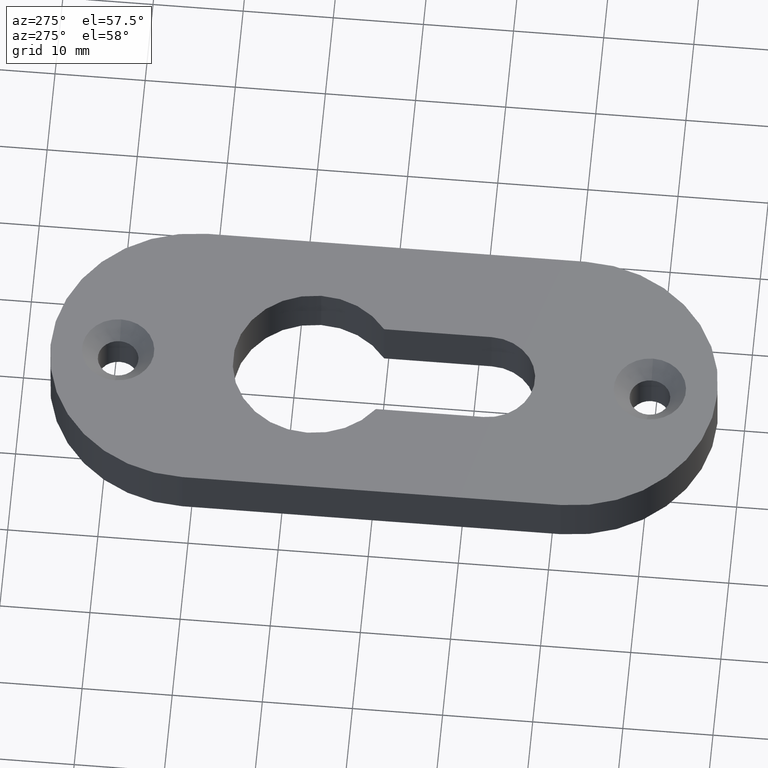
[diagram: clean part render]
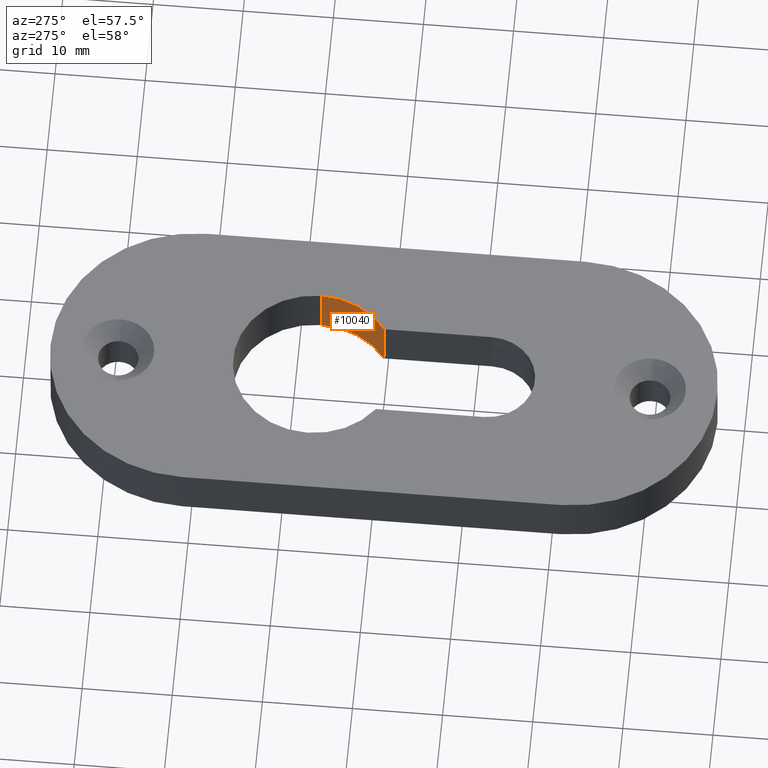
[diagram: same view with one face highlighted and labeled with its STEP entity id]
A machine part, auxiliary view. The second image highlights one B-rep face of the part: STEP entity #10040.
In plain terms, the highlighted cylindrical surface (partial cylindrical patch) has radius 9 mm, axis along (-0, -0, -1).
Its self-contained STEP definition (entity closure, byte-faithful):
#611 = EDGE_CURVE ( 'NONE', #2372, #882, #10341, .T. ) ;
#692 = VERTEX_POINT ( 'NONE', #7104 ) ;
#882 = VERTEX_POINT ( 'NONE', #6963 ) ;
#1062 = CARTESIAN_POINT ( 'NONE',  ( 9.000000000000000000, 7.750000000000002700, 6.000000000000000000 ) ) ;
#1137 = VECTOR ( 'NONE', #4972, 1000.000000000000000 ) ;
#1144 = ORIENTED_EDGE ( 'NONE', *, *, #4396, .T. ) ;
#1996 = CARTESIAN_POINT ( 'NONE',  ( 9.000000000000000000, 7.750000000000002700, 0.0000000000000000000 ) ) ;
#2322 = EDGE_LOOP ( 'NONE', ( #9670, #1144, #6441, #3242 ) ) ;
#2372 = VERTEX_POINT ( 'NONE', #3607 ) ;
#3242 = ORIENTED_EDGE ( 'NONE', *, *, #611, .F. ) ;
#3557 = VECTOR ( 'NONE', #7147, 1000.000000000000000 ) ;
#3607 = CARTESIAN_POINT ( 'NONE',  ( 5.250000000000000000, 0.4399042413932808800, 6.000000000000000000 ) ) ;
#3632 = CARTESIAN_POINT ( 'NONE',  ( 1.576732753902216800E-015, 7.750000000000001800, 6.000000000000000000 ) ) ;
#4396 = EDGE_CURVE ( 'NONE', #692, #10022, #7875, .T. ) ;
#4972 = DIRECTION ( 'NONE',  ( -0.0000000000000000000, -0.0000000000000000000, -1.000000000000000000 ) ) ;
#5417 = DIRECTION ( 'NONE',  ( 1.000000000000000000, 0.0000000000000000000, 0.0000000000000000000 ) ) ;
#5545 = CARTESIAN_POINT ( 'NONE',  ( 5.250000000000000000, 0.4399042413932808800, 6.000000000000000000 ) ) ;
#5642 = DIRECTION ( 'NONE',  ( 1.000000000000000000, 0.0000000000000000000, 0.0000000000000000000 ) ) ;
#5787 = CIRCLE ( 'NONE', #9419, 8.999999999999998200 ) ;
#6441 = ORIENTED_EDGE ( 'NONE', *, *, #10028, .F. ) ;
#6604 = DIRECTION ( 'NONE',  ( 0.0000000000000000000, 0.0000000000000000000, 1.000000000000000000 ) ) ;
#6946 = DIRECTION ( 'NONE',  ( -0.0000000000000000000, -0.0000000000000000000, -1.000000000000000000 ) ) ;
#6963 = CARTESIAN_POINT ( 'NONE',  ( 5.250000000000000000, 0.4399042413932808800, 0.0000000000000000000 ) ) ;
#6979 = DIRECTION ( 'NONE',  ( 0.0000000000000000000, 0.0000000000000000000, 1.000000000000000000 ) ) ;
#7047 = CYLINDRICAL_SURFACE ( 'NONE', #8207, 8.999999999999998200 ) ;
#7104 = CARTESIAN_POINT ( 'NONE',  ( 9.000000000000000000, 7.750000000000002700, 6.000000000000000000 ) ) ;
#7147 = DIRECTION ( 'NONE',  ( -0.0000000000000000000, -0.0000000000000000000, -1.000000000000000000 ) ) ;
#7225 = AXIS2_PLACEMENT_3D ( 'NONE', #8149, #6604, #5642 ) ;
#7702 = CIRCLE ( 'NONE', #7225, 8.999999999999998200 ) ;
#7817 = EDGE_CURVE ( 'NONE', #2372, #692, #7702, .T. ) ;
#7875 = LINE ( 'NONE', #1062, #1137 ) ;
#8096 = FACE_OUTER_BOUND ( 'NONE', #2322, .T. ) ;
#8149 = CARTESIAN_POINT ( 'NONE',  ( 1.576732753902216800E-015, 7.750000000000001800, 6.000000000000000000 ) ) ;
#8207 = AXIS2_PLACEMENT_3D ( 'NONE', #3632, #6946, #8644 ) ;
#8644 = DIRECTION ( 'NONE',  ( -1.000000000000000000, 0.0000000000000000000, 0.0000000000000000000 ) ) ;
#9419 = AXIS2_PLACEMENT_3D ( 'NONE', #9486, #6979, #5417 ) ;
#9486 = CARTESIAN_POINT ( 'NONE',  ( 1.576732753902216800E-015, 7.750000000000001800, 0.0000000000000000000 ) ) ;
#9670 = ORIENTED_EDGE ( 'NONE', *, *, #7817, .T. ) ;
#10022 = VERTEX_POINT ( 'NONE', #1996 ) ;
#10028 = EDGE_CURVE ( 'NONE', #882, #10022, #5787, .T. ) ;
#10040 = ADVANCED_FACE ( 'NONE', ( #8096 ), #7047, .F. ) ;
#10341 = LINE ( 'NONE', #5545, #3557 ) ;